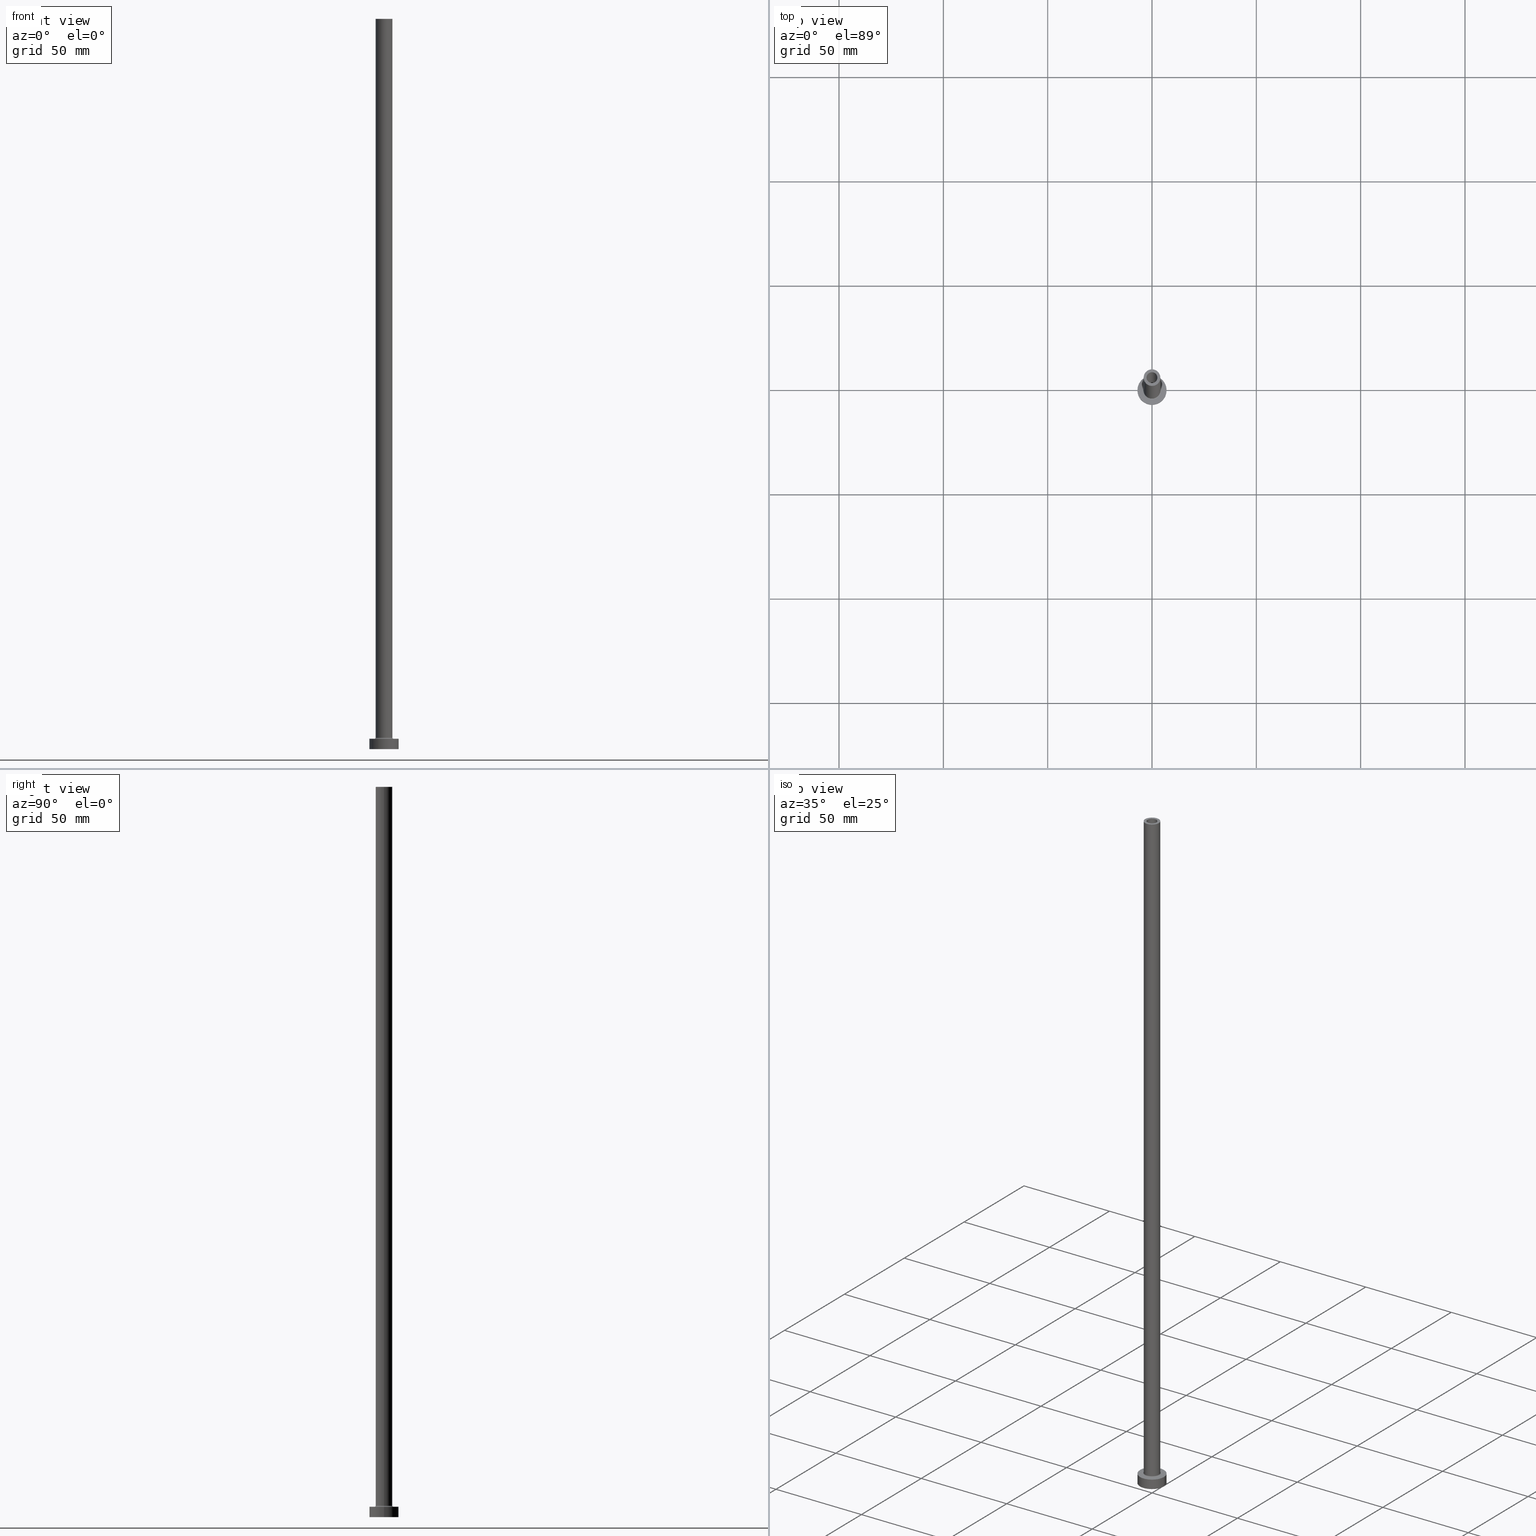
[diagram: canonical four-view strip — front | top / right | iso, engineering-drawing reading convention]
A machine part, canonical four-view strip (front | top / right | iso — engineering-drawing reading convention). The complete STEP part file that produces these views, byte-faithful:
ISO-10303-21;
HEADER;
FILE_DESCRIPTION (( 'STEP AP203' ),
    '1' );
FILE_NAME ('0387.STEP',
    '2023-02-13T16:29:26',
    ( '' ),
    ( '' ),
    'SwSTEP 2.0',
    'SolidWorks 2019',
    '' );
FILE_SCHEMA (( 'CONFIG_CONTROL_DESIGN' ));
ENDSEC;

DATA;
#1 = DIRECTION ( 'NONE',  ( 0.000000000000000000, 0.000000000000000000, -1.000000000000000000 ) ) ;
#2 = DIRECTION ( 'NONE',  ( -0.000000000000000000, -0.000000000000000000, -1.000000000000000000 ) ) ;
#3 = EDGE_CURVE ( 'NONE', #189, #116, #121, .T. ) ;
#4 = EDGE_LOOP ( 'NONE', ( #103, #41 ) ) ;
#5 = DIRECTION ( 'NONE',  ( 0.000000000000000000, 0.000000000000000000, 1.000000000000000000 ) ) ;
#6 = ORIENTED_EDGE ( 'NONE', *, *, #19, .F. ) ;
#7 = CARTESIAN_POINT ( 'NONE',  ( 0.000000000000000000, 0.000000000000000000, 312.7781745930519719 ) ) ;
#8 = ORIENTED_EDGE ( 'NONE', *, *, #188, .T. ) ;
#9 = VECTOR ( 'NONE', #162, 1000.000000000000000 ) ;
#10 = DIRECTION ( 'NONE',  ( -1.000000000000000000, 0.000000000000000000, 0.000000000000000000 ) ) ;
#11 = ORIENTED_EDGE ( 'NONE', *, *, #95, .T. ) ;
#12 = ADVANCED_FACE ( 'NONE', ( #344 ), #376, .F. ) ;
#13 =( NAMED_UNIT ( * ) SI_UNIT ( $, .STERADIAN. ) SOLID_ANGLE_UNIT ( ) );
#14 = ORIENTED_EDGE ( 'NONE', *, *, #357, .T. ) ;
#15 = COORDINATED_UNIVERSAL_TIME_OFFSET ( 1, 0, .AHEAD. ) ;
#16 = ORIENTED_EDGE ( 'NONE', *, *, #257, .T. ) ;
#17 = AXIS2_PLACEMENT_3D ( 'NONE', #80, #2, #435 ) ;
#18 = CYLINDRICAL_SURFACE ( 'NONE', #434, 2.600000000000000089 ) ;
#19 = EDGE_CURVE ( 'NONE', #252, #169, #32, .T. ) ;
#20 = PERSON_AND_ORGANIZATION_ROLE ( 'creator' ) ;
#21 = CARTESIAN_POINT ( 'NONE',  ( 0.000000000000000000, 0.000000000000000000, 0.000000000000000000 ) ) ;
#22 = DATE_TIME_ROLE ( 'creation_date' ) ;
#23 = CARTESIAN_POINT ( 'NONE',  ( -4.500000000000000888, 5.510910596163088569E-16, 5.000000000000002665 ) ) ;
#24 = AXIS2_PLACEMENT_3D ( 'NONE', #62, #149, #290 ) ;
#25 = DIRECTION ( 'NONE',  ( 0.000000000000000000, 0.000000000000000000, 1.000000000000000000 ) ) ;
#26 = CARTESIAN_POINT ( 'NONE',  ( 0.000000000000000000, 0.000000000000000000, 305.0000000000000000 ) ) ;
#27 = APPLICATION_CONTEXT ( 'configuration controlled 3d designs of mechanical parts and assemblies' ) ;
#28 = AXIS2_PLACEMENT_3D ( 'NONE', #313, #205, #238 ) ;
#29 = CARTESIAN_POINT ( 'NONE',  ( -2.600000000000000089, 0.000000000000000000, 350.0000000000000000 ) ) ;
#30 = EDGE_LOOP ( 'NONE', ( #310, #73 ) ) ;
#31 = ADVANCED_FACE ( 'NONE', ( #333 ), #198, .T. ) ;
#32 = CIRCLE ( 'NONE', #457, 7.000000000000000000 ) ;
#33 = DIRECTION ( 'NONE',  ( 0.000000000000000000, 0.000000000000000000, 1.000000000000000000 ) ) ;
#34 = CARTESIAN_POINT ( 'NONE',  ( 7.000000000000000000, 8.572527594031473190E-16, 0.000000000000000000 ) ) ;
#35 = EDGE_CURVE ( 'NONE', #37, #312, #60, .T. ) ;
#36 = DIRECTION ( 'NONE',  ( 0.000000000000000000, 0.000000000000000000, -1.000000000000000000 ) ) ;
#37 = VERTEX_POINT ( 'NONE', #369 ) ;
#38 = CIRCLE ( 'NONE', #295, 2.600000000000000089 ) ;
#39 = ORIENTED_EDGE ( 'NONE', *, *, #35, .T. ) ;
#40 = DIRECTION ( 'NONE',  ( 0.000000000000000000, 0.000000000000000000, 1.000000000000000000 ) ) ;
#41 = ORIENTED_EDGE ( 'NONE', *, *, #244, .T. ) ;
#42 = CYLINDRICAL_SURFACE ( 'NONE', #395, 7.000000000000000000 ) ;
#43 = EDGE_LOOP ( 'NONE', ( #118, #331, #16, #8 ) ) ;
#44 = CIRCLE ( 'NONE', #201, 2.600000000000000089 ) ;
#45 = CC_DESIGN_DATE_AND_TIME_ASSIGNMENT ( #93, #125, ( #427 ) ) ;
#46 = CARTESIAN_POINT ( 'NONE',  ( 2.750000000000000000, 3.367778697655220519E-16, 312.7781745930519719 ) ) ;
#47 = ORIENTED_EDGE ( 'NONE', *, *, #294, .F. ) ;
#48 = CALENDAR_DATE ( 2023, 13, 2 ) ;
#49 = VERTEX_POINT ( 'NONE', #297 ) ;
#50 = EDGE_CURVE ( 'NONE', #400, #148, #314, .T. ) ;
#51 = CARTESIAN_POINT ( 'NONE',  ( 0.000000000000000000, 0.000000000000000000, 350.0000000000000000 ) ) ;
#52 = CIRCLE ( 'NONE', #443, 2.750000000000000000 ) ;
#53 = CARTESIAN_POINT ( 'NONE',  ( 0.000000000000000000, 0.000000000000000000, 350.0000000000000000 ) ) ;
#54 = PERSON_AND_ORGANIZATION ( #326, #66 ) ;
#55 = DIRECTION ( 'NONE',  ( 0.000000000000000000, 0.000000000000000000, -1.000000000000000000 ) ) ;
#56 = EDGE_CURVE ( 'NONE', #245, #49, #414, .T. ) ;
#57 = CALENDAR_DATE ( 2023, 13, 2 ) ;
#58 = DIRECTION ( 'NONE',  ( 1.000000000000000000, 0.000000000000000000, 0.000000000000000000 ) ) ;
#59 = AXIS2_PLACEMENT_3D ( 'NONE', #207, #423, #204 ) ;
#60 = CIRCLE ( 'NONE', #177, 7.000000000000000000 ) ;
#61 = CARTESIAN_POINT ( 'NONE',  ( 0.000000000000000000, 0.000000000000000000, 305.0000000000000000 ) ) ;
#62 = CARTESIAN_POINT ( 'NONE',  ( 0.000000000000000000, 0.000000000000000000, 5.500000000000005329 ) ) ;
#63 = CC_DESIGN_PERSON_AND_ORGANIZATION_ASSIGNMENT ( #194, #20, ( #307 ) ) ;
#64 = FACE_BOUND ( 'NONE', #142, .T. ) ;
#65 = AXIS2_PLACEMENT_3D ( 'NONE', #173, #107, #211 ) ;
#66 = ORGANIZATION ( 'NEUR�EN�', 'NEUR�EN�', '' ) ;
#67 = CYLINDRICAL_SURFACE ( 'NONE', #28, 7.000000000000000000 ) ;
#68 = PLANE ( 'NONE',  #275 ) ;
#69 = VERTEX_POINT ( 'NONE', #416 ) ;
#70 = EDGE_CURVE ( 'NONE', #150, #69, #52, .T. ) ;
#71 = EDGE_LOOP ( 'NONE', ( #75, #424, #255, #439 ) ) ;
#72 = CIRCLE ( 'NONE', #65, 2.750000000000000000 ) ;
#73 = ORIENTED_EDGE ( 'NONE', *, *, #350, .T. ) ;
#74 = CYLINDRICAL_SURFACE ( 'NONE', #292, 2.750000000000000000 ) ;
#75 = ORIENTED_EDGE ( 'NONE', *, *, #188, .F. ) ;
#76 = MANIFOLD_SOLID_BREP ( 'Odebrat vysunut�m4', #206 ) ;
#77 = FACE_OUTER_BOUND ( 'NONE', #190, .T. ) ;
#78 = APPROVAL ( #375, 'NEUR�EN�' ) ;
#79 = ORIENTED_EDGE ( 'NONE', *, *, #101, .F. ) ;
#80 = CARTESIAN_POINT ( 'NONE',  ( 0.000000000000000000, 0.000000000000000000, 0.000000000000000000 ) ) ;
#81 = ORIENTED_EDGE ( 'NONE', *, *, #50, .F. ) ;
#82 = AXIS2_PLACEMENT_3D ( 'NONE', #215, #438, #117 ) ;
#83 = APPROVAL_PERSON_ORGANIZATION ( #261, #78, #266 ) ;
#84 = CARTESIAN_POINT ( 'NONE',  ( -2.600000000000000089, 0.000000000000000000, 350.0000000000000000 ) ) ;
#85 = ORIENTED_EDGE ( 'NONE', *, *, #357, .F. ) ;
#86 = ADVANCED_FACE ( 'NONE', ( #444 ), #18, .F. ) ;
#87 = APPLICATION_PROTOCOL_DEFINITION ( 'international standard', 'config_control_design', 1994, #27 ) ;
#88 = DIRECTION ( 'NONE',  ( 1.000000000000000000, 0.000000000000000000, -0.000000000000000000 ) ) ;
#89 = DIRECTION ( 'NONE',  ( -0.000000000000000000, -0.000000000000000000, -1.000000000000000000 ) ) ;
#90 = AXIS2_PLACEMENT_3D ( 'NONE', #147, #40, #352 ) ;
#91 = PERSON_AND_ORGANIZATION_ROLE ( 'design_owner' ) ;
#92 = CARTESIAN_POINT ( 'NONE',  ( -7.000000000000000000, 0.000000000000000000, 5.000000000000000000 ) ) ;
#93 = DATE_AND_TIME ( #48, #176 ) ;
#94 = DIRECTION ( 'NONE',  ( 0.000000000000000000, 0.000000000000000000, 1.000000000000000000 ) ) ;
#95 = EDGE_CURVE ( 'NONE', #289, #172, #371, .T. ) ;
#96 = CARTESIAN_POINT ( 'NONE',  ( 0.000000000000000000, 0.000000000000000000, 305.0000000000000000 ) ) ;
#97 = AXIS2_PLACEMENT_3D ( 'NONE', #304, #456, #429 ) ;
#98 = AXIS2_PLACEMENT_3D ( 'NONE', #96, #203, #88 ) ;
#99 = LINE ( 'NONE', #102, #433 ) ;
#100 = ORIENTED_EDGE ( 'NONE', *, *, #70, .T. ) ;
#101 = EDGE_CURVE ( 'NONE', #37, #169, #413, .T. ) ;
#102 = CARTESIAN_POINT ( 'NONE',  ( 7.000000000000000000, 8.572527594031473190E-16, 5.000000000000000000 ) ) ;
#103 = ORIENTED_EDGE ( 'NONE', *, *, #339, .T. ) ;
#104 = DIRECTION ( 'NONE',  ( 1.000000000000000000, 0.000000000000000000, -0.000000000000000000 ) ) ;
#105 = APPROVAL_PERSON_ORGANIZATION ( #223, #112, #299 ) ;
#106 = DIRECTION ( 'NONE',  ( 0.000000000000000000, 0.000000000000000000, 1.000000000000000000 ) ) ;
#107 = DIRECTION ( 'NONE',  ( 0.000000000000000000, 0.000000000000000000, 1.000000000000000000 ) ) ;
#108 = ORIENTED_EDGE ( 'NONE', *, *, #3, .T. ) ;
#109 = EDGE_LOOP ( 'NONE', ( #152, #248, #187, #280 ) ) ;
#110 = AXIS2_PLACEMENT_3D ( 'NONE', #399, #362, #217 ) ;
#111 = EDGE_LOOP ( 'NONE', ( #108, #291 ) ) ;
#112 = APPROVAL ( #161, 'NEUR�EN�' ) ;
#113 = FACE_BOUND ( 'NONE', #4, .T. ) ;
#114 = ORIENTED_EDGE ( 'NONE', *, *, #452, .F. ) ;
#115 = CARTESIAN_POINT ( 'NONE',  ( 0.000000000000000000, 0.000000000000000000, 5.000000000000000000 ) ) ;
#116 = VERTEX_POINT ( 'NONE', #256 ) ;
#117 = DIRECTION ( 'NONE',  ( 1.000000000000000000, 0.000000000000000000, -0.000000000000000000 ) ) ;
#118 = ORIENTED_EDGE ( 'NONE', *, *, #212, .F. ) ;
#119 = EDGE_CURVE ( 'NONE', #286, #150, #200, .T. ) ;
#120 = AXIS2_PLACEMENT_3D ( 'NONE', #258, #417, #330 ) ;
#121 = CIRCLE ( 'NONE', #129, 4.000000000000000000 ) ;
#122 = DIRECTION ( 'NONE',  ( 0.000000000000000000, 0.000000000000000000, -1.000000000000000000 ) ) ;
#123 = COORDINATED_UNIVERSAL_TIME_OFFSET ( 1, 0, .AHEAD. ) ;
#124 = FACE_BOUND ( 'NONE', #30, .T. ) ;
#125 = DATE_TIME_ROLE ( 'classification_date' ) ;
#126 = DIRECTION ( 'NONE',  ( -1.000000000000000000, 0.000000000000000000, 0.000000000000000000 ) ) ;
#127 = APPROVAL_PERSON_ORGANIZATION ( #54, #446, #197 ) ;
#128 = CC_DESIGN_PERSON_AND_ORGANIZATION_ASSIGNMENT ( #158, #302, ( #300 ) ) ;
#129 = AXIS2_PLACEMENT_3D ( 'NONE', #181, #25, #231 ) ;
#130 = COORDINATED_UNIVERSAL_TIME_OFFSET ( 1, 0, .AHEAD. ) ;
#131 = DIRECTION ( 'NONE',  ( 1.000000000000000000, 0.000000000000000000, 0.000000000000000000 ) ) ;
#132 = CALENDAR_DATE ( 2023, 13, 2 ) ;
#133 = DIRECTION ( 'NONE',  ( 1.000000000000000000, 0.000000000000000000, 0.000000000000000000 ) ) ;
#134 = DIRECTION ( 'NONE',  ( 0.000000000000000000, 0.000000000000000000, 1.000000000000000000 ) ) ;
#135 = CC_DESIGN_PERSON_AND_ORGANIZATION_ASSIGNMENT ( #228, #91, ( #320 ) ) ;
#136 = VECTOR ( 'NONE', #1, 1000.000000000000000 ) ;
#137 = CARTESIAN_POINT ( 'NONE',  ( -2.600000000000000089, 0.000000000000000000, 305.0000000000000000 ) ) ;
#138 = DIRECTION ( 'NONE',  ( 0.000000000000000000, 0.000000000000000000, 1.000000000000000000 ) ) ;
#139 = CARTESIAN_POINT ( 'NONE',  ( 4.000000000000000000, 4.898587196589412829E-16, 350.0000000000000000 ) ) ;
#140 = VECTOR ( 'NONE', #311, 1000.000000000000000 ) ;
#141 = DIRECTION ( 'NONE',  ( -0.000000000000000000, -0.000000000000000000, -1.000000000000000000 ) ) ;
#142 = EDGE_LOOP ( 'NONE', ( #405, #430 ) ) ;
#143 = DIRECTION ( 'NONE',  ( 1.000000000000000000, 0.000000000000000000, 0.000000000000000000 ) ) ;
#144 = APPLICATION_PROTOCOL_DEFINITION ( 'international standard', 'config_control_design', 1994, #260 ) ;
#145 = ORIENTED_EDGE ( 'NONE', *, *, #237, .F. ) ;
#146 = EDGE_CURVE ( 'NONE', #363, #428, #38, .T. ) ;
#147 = CARTESIAN_POINT ( 'NONE',  ( 0.000000000000000000, 0.000000000000000000, 350.0000000000000000 ) ) ;
#148 = VERTEX_POINT ( 'NONE', #23 ) ;
#149 = DIRECTION ( 'NONE',  ( 0.000000000000000000, 0.000000000000000000, 1.000000000000000000 ) ) ;
#150 = VERTEX_POINT ( 'NONE', #418 ) ;
#151 = PLANE ( 'NONE',  #90 ) ;
#152 = ORIENTED_EDGE ( 'NONE', *, *, #202, .F. ) ;
#153 = DIRECTION ( 'NONE',  ( 0.000000000000000000, 0.000000000000000000, 1.000000000000000000 ) ) ;
#154 = AXIS2_PLACEMENT_3D ( 'NONE', #319, #281, #359 ) ;
#155 = AXIS2_PLACEMENT_3D ( 'NONE', #61, #378, #131 ) ;
#156 = PERSON_AND_ORGANIZATION ( #326, #66 ) ;
#157 = CARTESIAN_POINT ( 'NONE',  ( 0.000000000000000000, 0.000000000000000000, 350.0000000000000000 ) ) ;
#158 = PERSON_AND_ORGANIZATION ( #326, #66 ) ;
#159 = DIRECTION ( 'NONE',  ( 0.000000000000000000, 0.000000000000000000, -1.000000000000000000 ) ) ;
#160 = CC_DESIGN_PERSON_AND_ORGANIZATION_ASSIGNMENT ( #296, #365, ( #427 ) ) ;
#161 = APPROVAL_STATUS ( 'not_yet_approved' ) ;
#162 = DIRECTION ( 'NONE',  ( -0.000000000000000000, -0.000000000000000000, -1.000000000000000000 ) ) ;
#163 = CC_DESIGN_APPROVAL ( #112, ( #300 ) ) ;
#164 = COORDINATED_UNIVERSAL_TIME_OFFSET ( 1, 0, .AHEAD. ) ;
#165 = CARTESIAN_POINT ( 'NONE',  ( 0.000000000000000000, 0.000000000000000000, 0.000000000000000000 ) ) ;
#166 = ADVANCED_FACE ( 'NONE', ( #124, #342 ), #303, .F. ) ;
#167 = LINE ( 'NONE', #273, #348 ) ;
#168 = CARTESIAN_POINT ( 'NONE',  ( 2.600000000000000089, 3.184081677783117698E-16, 350.0000000000000000 ) ) ;
#169 = VERTEX_POINT ( 'NONE', #224 ) ;
#170 = AXIS2_PLACEMENT_3D ( 'NONE', #383, #106, #422 ) ;
#171 = CARTESIAN_POINT ( 'NONE',  ( 0.000000000000000000, 0.000000000000000000, 5.000000000000000000 ) ) ;
#172 = VERTEX_POINT ( 'NONE', #259 ) ;
#173 = CARTESIAN_POINT ( 'NONE',  ( 0.000000000000000000, 0.000000000000000000, 305.0000000000000000 ) ) ;
#174 = ADVANCED_FACE ( 'NONE', ( #409 ), #367, .T. ) ;
#175 = CARTESIAN_POINT ( 'NONE',  ( 0.000000000000000000, 0.000000000000000000, 5.500000000000005329 ) ) ;
#176 = LOCAL_TIME ( 17, 29, 26.00000000000000000, #415 ) ;
#177 = AXIS2_PLACEMENT_3D ( 'NONE', #265, #94, #451 ) ;
#178 = ORIENTED_EDGE ( 'NONE', *, *, #119, .T. ) ;
#179 = CARTESIAN_POINT ( 'NONE',  ( 0.000000000000000000, 0.000000000000000000, 5.000000000000000000 ) ) ;
#180 = ADVANCED_FACE ( 'NONE', ( #226 ), #213, .F. ) ;
#181 = CARTESIAN_POINT ( 'NONE',  ( 0.000000000000000000, 0.000000000000000000, 350.0000000000000000 ) ) ;
#182 = FACE_OUTER_BOUND ( 'NONE', #318, .T. ) ;
#183 = EDGE_LOOP ( 'NONE', ( #384, #6 ) ) ;
#184 = PRODUCT_DEFINITION_SHAPE ( 'NONE', 'NONE',  #307 ) ;
#185 = FACE_BOUND ( 'NONE', #387, .T. ) ;
#186 = CIRCLE ( 'NONE', #110, 2.750000000000000000 ) ;
#187 = ORIENTED_EDGE ( 'NONE', *, *, #329, .T. ) ;
#188 = EDGE_CURVE ( 'NONE', #400, #289, #341, .T. ) ;
#189 = VERTEX_POINT ( 'NONE', #272 ) ;
#190 = EDGE_LOOP ( 'NONE', ( #39, #279 ) ) ;
#191 = DATE_AND_TIME ( #337, #449 ) ;
#192 = DIRECTION ( 'NONE',  ( -1.000000000000000000, 0.000000000000000000, 0.000000000000000000 ) ) ;
#193 = LOCAL_TIME ( 17, 29, 26.00000000000000000, #15 ) ;
#194 = PERSON_AND_ORGANIZATION ( #326, #66 ) ;
#195 = DIRECTION ( 'NONE',  ( -1.000000000000000000, 0.000000000000000000, 0.000000000000000000 ) ) ;
#196 = CC_DESIGN_DATE_AND_TIME_ASSIGNMENT ( #230, #22, ( #307 ) ) ;
#197 = APPROVAL_ROLE ( '' ) ;
#198 = CYLINDRICAL_SURFACE ( 'NONE', #388, 4.000000000000000000 ) ;
#199 = DATE_AND_TIME ( #57, #193 ) ;
#200 = LINE ( 'NONE', #373, #234 ) ;
#201 = AXIS2_PLACEMENT_3D ( 'NONE', #26, #421, #381 ) ;
#202 = EDGE_CURVE ( 'NONE', #363, #49, #346, .T. ) ;
#203 = DIRECTION ( 'NONE',  ( 0.000000000000000000, 0.000000000000000000, 1.000000000000000000 ) ) ;
#204 = DIRECTION ( 'NONE',  ( 1.000000000000000000, 0.000000000000000000, 0.000000000000000000 ) ) ;
#205 = DIRECTION ( 'NONE',  ( -0.000000000000000000, -0.000000000000000000, -1.000000000000000000 ) ) ;
#206 = CLOSED_SHELL ( 'NONE', ( #86, #380, #345, #174, #225, #425, #410, #322, #31, #364, #180, #390, #166, #12 ) ) ;
#207 = CARTESIAN_POINT ( 'NONE',  ( 0.000000000000000000, 0.000000000000000000, 5.500000000000005329 ) ) ;
#208 = CARTESIAN_POINT ( 'NONE',  ( 0.000000000000000000, 0.000000000000000000, 0.000000000000000000 ) ) ;
#209 = ORIENTED_EDGE ( 'NONE', *, *, #437, .T. ) ;
#210 = DESIGN_CONTEXT ( 'detailed design', #27, 'design' ) ;
#211 = DIRECTION ( 'NONE',  ( 1.000000000000000000, 0.000000000000000000, 0.000000000000000000 ) ) ;
#212 = EDGE_CURVE ( 'NONE', #116, #289, #270, .T. ) ;
#213 = TOROIDAL_SURFACE ( 'NONE', #227, 4.500000000000000888, 0.5000000000000000000 ) ;
#214 = ORIENTED_EDGE ( 'NONE', *, *, #419, .T. ) ;
#215 = CARTESIAN_POINT ( 'NONE',  ( 0.000000000000000000, 0.000000000000000000, 5.000000000000000000 ) ) ;
#216 = EDGE_LOOP ( 'NONE', ( #114, #355, #243, #79 ) ) ;
#217 = DIRECTION ( 'NONE',  ( 1.000000000000000000, 0.000000000000000000, 0.000000000000000000 ) ) ;
#218 = ORIENTED_EDGE ( 'NONE', *, *, #271, .F. ) ;
#219 = DIRECTION ( 'NONE',  ( 1.000000000000000000, 0.000000000000000000, 0.000000000000000000 ) ) ;
#220 = ORIENTED_EDGE ( 'NONE', *, *, #202, .T. ) ;
#221 = PERSON_AND_ORGANIZATION_ROLE ( 'design_supplier' ) ;
#222 = ORIENTED_EDGE ( 'NONE', *, *, #431, .F. ) ;
#223 = PERSON_AND_ORGANIZATION ( #326, #66 ) ;
#224 = CARTESIAN_POINT ( 'NONE',  ( -7.000000000000000000, 0.000000000000000000, 0.000000000000000000 ) ) ;
#225 = ADVANCED_FACE ( 'NONE', ( #460 ), #67, .T. ) ;
#226 = FACE_OUTER_BOUND ( 'NONE', #436, .T. ) ;
#227 = AXIS2_PLACEMENT_3D ( 'NONE', #175, #235, #347 ) ;
#228 = PERSON_AND_ORGANIZATION ( #326, #66 ) ;
#229 = DIRECTION ( 'NONE',  ( 1.000000000000000000, 0.000000000000000000, 0.000000000000000000 ) ) ;
#230 = DATE_AND_TIME ( #132, #240 ) ;
#231 = DIRECTION ( 'NONE',  ( 1.000000000000000000, 0.000000000000000000, 0.000000000000000000 ) ) ;
#232 = CARTESIAN_POINT ( 'NONE',  ( 0.000000000000000000, 0.000000000000000000, 350.0000000000000000 ) ) ;
#233 = AXIS2_PLACEMENT_3D ( 'NONE', #305, #33, #277 ) ;
#234 = VECTOR ( 'NONE', #159, 1000.000000000000000 ) ;
#235 = DIRECTION ( 'NONE',  ( 0.000000000000000000, 0.000000000000000000, 1.000000000000000000 ) ) ;
#236 = CARTESIAN_POINT ( 'NONE',  ( 2.750000000000000000, 3.367778697655220519E-16, 305.0000000000000000 ) ) ;
#237 = EDGE_CURVE ( 'NONE', #116, #189, #442, .T. ) ;
#238 = DIRECTION ( 'NONE',  ( -1.000000000000000000, 0.000000000000000000, 0.000000000000000000 ) ) ;
#239 = EDGE_LOOP ( 'NONE', ( #250, #218 ) ) ;
#240 = LOCAL_TIME ( 17, 29, 26.00000000000000000, #130 ) ;
#241 = CARTESIAN_POINT ( 'NONE',  ( 7.000000000000000000, 8.572527594031473190E-16, 5.000000000000000000 ) ) ;
#242 = FACE_OUTER_BOUND ( 'NONE', #71, .T. ) ;
#243 = ORIENTED_EDGE ( 'NONE', *, *, #19, .T. ) ;
#244 = EDGE_CURVE ( 'NONE', #148, #172, #324, .T. ) ;
#245 = VERTEX_POINT ( 'NONE', #137 ) ;
#246 = VECTOR ( 'NONE', #36, 1000.000000000000000 ) ;
#247 = DIRECTION ( 'NONE',  ( -1.000000000000000000, 0.000000000000000000, 0.000000000000000000 ) ) ;
#248 = ORIENTED_EDGE ( 'NONE', *, *, #146, .T. ) ;
#249 = PLANE ( 'NONE',  #82 ) ;
#250 = ORIENTED_EDGE ( 'NONE', *, *, #419, .F. ) ;
#251 = CARTESIAN_POINT ( 'NONE',  ( 0.000000000000000000, 0.000000000000000000, 350.0000000000000000 ) ) ;
#252 = VERTEX_POINT ( 'NONE', #34 ) ;
#253 = CARTESIAN_POINT ( 'NONE',  ( 2.600000000000000089, 3.184081677783117698E-16, 350.0000000000000000 ) ) ;
#254 =( GEOMETRIC_REPRESENTATION_CONTEXT ( 3 ) GLOBAL_UNCERTAINTY_ASSIGNED_CONTEXT ( ( #458 ) ) GLOBAL_UNIT_ASSIGNED_CONTEXT ( ( #393, #315, #13 ) ) REPRESENTATION_CONTEXT ( 'NONE', 'WORKASPACE' ) );
#255 = ORIENTED_EDGE ( 'NONE', *, *, #339, .F. ) ;
#256 = CARTESIAN_POINT ( 'NONE',  ( 4.000000000000000000, 4.898587196589412829E-16, 350.0000000000000000 ) ) ;
#257 = EDGE_CURVE ( 'NONE', #189, #400, #167, .T. ) ;
#258 = CARTESIAN_POINT ( 'NONE',  ( 0.000000000000000000, 0.000000000000000000, 0.000000000000000000 ) ) ;
#259 = CARTESIAN_POINT ( 'NONE',  ( 4.500000000000000888, 0.000000000000000000, 5.000000000000002665 ) ) ;
#260 = APPLICATION_CONTEXT ( 'configuration controlled 3d designs of mechanical parts and assemblies' ) ;
#261 = PERSON_AND_ORGANIZATION ( #326, #66 ) ;
#262 = DIRECTION ( 'NONE',  ( 1.224646799147353207E-16, 1.000000000000000000, -0.000000000000000000 ) ) ;
#263 = CIRCLE ( 'NONE', #17, 2.750000000000000000 ) ;
#264 = SECURITY_CLASSIFICATION_LEVEL ( 'unclassified' ) ;
#265 = CARTESIAN_POINT ( 'NONE',  ( 0.000000000000000000, 0.000000000000000000, 5.000000000000000000 ) ) ;
#266 = APPROVAL_ROLE ( '' ) ;
#267 = DIRECTION ( 'NONE',  ( -1.000000000000000000, 1.224646799147351482E-16, 0.000000000000000000 ) ) ;
#268 = DIRECTION ( 'NONE',  ( 1.000000000000000000, 0.000000000000000000, 0.000000000000000000 ) ) ;
#269 = AXIS2_PLACEMENT_3D ( 'NONE', #251, #5, #143 ) ;
#270 = LINE ( 'NONE', #139, #412 ) ;
#271 = EDGE_CURVE ( 'NONE', #321, #286, #72, .T. ) ;
#272 = CARTESIAN_POINT ( 'NONE',  ( -4.000000000000000000, 0.000000000000000000, 350.0000000000000000 ) ) ;
#273 = CARTESIAN_POINT ( 'NONE',  ( -4.000000000000000000, 0.000000000000000000, 350.0000000000000000 ) ) ;
#274 = ORIENTED_EDGE ( 'NONE', *, *, #437, .F. ) ;
#275 = AXIS2_PLACEMENT_3D ( 'NONE', #208, #138, #104 ) ;
#276 = CC_DESIGN_APPROVAL ( #78, ( #427 ) ) ;
#277 = DIRECTION ( 'NONE',  ( 1.000000000000000000, 0.000000000000000000, 0.000000000000000000 ) ) ;
#278 = EDGE_CURVE ( 'NONE', #169, #252, #455, .T. ) ;
#279 = ORIENTED_EDGE ( 'NONE', *, *, #452, .T. ) ;
#280 = ORIENTED_EDGE ( 'NONE', *, *, #350, .F. ) ;
#281 = DIRECTION ( 'NONE',  ( 0.000000000000000000, 0.000000000000000000, -1.000000000000000000 ) ) ;
#282 = EDGE_LOOP ( 'NONE', ( #316, #220, #392, #353 ) ) ;
#283 = AXIS2_PLACEMENT_3D ( 'NONE', #171, #385, #351 ) ;
#284 = CYLINDRICAL_SURFACE ( 'NONE', #154, 2.750000000000000000 ) ;
#285 = AXIS2_PLACEMENT_3D ( 'NONE', #445, #336, #122 ) ;
#286 = VERTEX_POINT ( 'NONE', #426 ) ;
#287 = PRODUCT_RELATED_PRODUCT_CATEGORY ( 'detail', '', ( #320 ) ) ;
#288 = DIRECTION ( 'NONE',  ( 0.000000000000000000, 0.000000000000000000, -1.000000000000000000 ) ) ;
#289 = VERTEX_POINT ( 'NONE', #309 ) ;
#290 = DIRECTION ( 'NONE',  ( 1.000000000000000000, 0.000000000000000000, 0.000000000000000000 ) ) ;
#291 = ORIENTED_EDGE ( 'NONE', *, *, #237, .T. ) ;
#292 = AXIS2_PLACEMENT_3D ( 'NONE', #7, #288, #247 ) ;
#293 = CARTESIAN_POINT ( 'NONE',  ( 0.000000000000000000, 0.000000000000000000, 350.0000000000000000 ) ) ;
#294 = EDGE_CURVE ( 'NONE', #312, #252, #99, .T. ) ;
#295 = AXIS2_PLACEMENT_3D ( 'NONE', #53, #407, #229 ) ;
#296 = PERSON_AND_ORGANIZATION ( #326, #66 ) ;
#297 = CARTESIAN_POINT ( 'NONE',  ( 2.600000000000000089, 3.184081677783117698E-16, 305.0000000000000000 ) ) ;
#298 = DIRECTION ( 'NONE',  ( -0.000000000000000000, -0.000000000000000000, -1.000000000000000000 ) ) ;
#299 = APPROVAL_ROLE ( '' ) ;
#300 = PRODUCT_DEFINITION_FORMATION_WITH_SPECIFIED_SOURCE ( 'LIBOVOLN�', '', #320, .NOT_KNOWN. ) ;
#301 = DIRECTION ( 'NONE',  ( -0.000000000000000000, -0.000000000000000000, -1.000000000000000000 ) ) ;
#302 = PERSON_AND_ORGANIZATION_ROLE ( 'creator' ) ;
#303 = PLANE ( 'NONE',  #98 ) ;
#304 = CARTESIAN_POINT ( 'NONE',  ( 0.000000000000000000, 0.000000000000000000, 5.000000000000000000 ) ) ;
#305 = CARTESIAN_POINT ( 'NONE',  ( 0.000000000000000000, 0.000000000000000000, 350.0000000000000000 ) ) ;
#306 = ORIENTED_EDGE ( 'NONE', *, *, #212, .T. ) ;
#307 = PRODUCT_DEFINITION ( 'NEZN�M�', '', #300, #210 ) ;
#308 = CIRCLE ( 'NONE', #283, 4.500000000000000888 ) ;
#309 = CARTESIAN_POINT ( 'NONE',  ( 4.000000000000000000, 4.898587196589412829E-16, 5.500000000000005329 ) ) ;
#310 = ORIENTED_EDGE ( 'NONE', *, *, #56, .T. ) ;
#311 = DIRECTION ( 'NONE',  ( 0.000000000000000000, 0.000000000000000000, -1.000000000000000000 ) ) ;
#312 = VERTEX_POINT ( 'NONE', #241 ) ;
#313 = CARTESIAN_POINT ( 'NONE',  ( 0.000000000000000000, 0.000000000000000000, 5.000000000000000000 ) ) ;
#314 = CIRCLE ( 'NONE', #379, 0.5000000000000004441 ) ;
#315 =( NAMED_UNIT ( * ) PLANE_ANGLE_UNIT ( ) SI_UNIT ( $, .RADIAN. ) );
#316 = ORIENTED_EDGE ( 'NONE', *, *, #431, .T. ) ;
#317 = DIRECTION ( 'NONE',  ( 0.000000000000000000, 0.000000000000000000, 1.000000000000000000 ) ) ;
#318 = EDGE_LOOP ( 'NONE', ( #214, #209, #461, #432 ) ) ;
#319 = CARTESIAN_POINT ( 'NONE',  ( 0.000000000000000000, 0.000000000000000000, 312.7781745930519719 ) ) ;
#320 = PRODUCT ( '0387', '0387', '', ( #408 ) ) ;
#321 = VERTEX_POINT ( 'NONE', #236 ) ;
#322 = ADVANCED_FACE ( 'NONE', ( #64, #389 ), #68, .F. ) ;
#323 = TOROIDAL_SURFACE ( 'NONE', #354, 4.500000000000000888, 0.5000000000000000000 ) ;
#324 = CIRCLE ( 'NONE', #97, 4.500000000000000888 ) ;
#325 = FACE_OUTER_BOUND ( 'NONE', #382, .T. ) ;
#326 = PERSON ( 'NEUR�EN�', 'NEUR�EN�', 'NEUR�EN�', ('NEUR�EN�'), ('NEUR�EN�'), ('NEUR�EN�') ) ;
#327 = ORIENTED_EDGE ( 'NONE', *, *, #257, .F. ) ;
#328 = ORIENTED_EDGE ( 'NONE', *, *, #146, .F. ) ;
#329 = EDGE_CURVE ( 'NONE', #428, #245, #391, .T. ) ;
#330 = DIRECTION ( 'NONE',  ( 1.000000000000000000, 0.000000000000000000, 0.000000000000000000 ) ) ;
#331 = ORIENTED_EDGE ( 'NONE', *, *, #3, .F. ) ;
#332 = AXIS2_PLACEMENT_3D ( 'NONE', #179, #317, #219 ) ;
#333 = FACE_OUTER_BOUND ( 'NONE', #43, .T. ) ;
#334 = AXIS2_PLACEMENT_3D ( 'NONE', #293, #55, #126 ) ;
#335 = APPROVAL_DATE_TIME ( #450, #112 ) ;
#336 = DIRECTION ( 'NONE',  ( 0.000000000000000000, -1.000000000000000000, 0.000000000000000000 ) ) ;
#337 = CALENDAR_DATE ( 2023, 13, 2 ) ;
#338 = CARTESIAN_POINT ( 'NONE',  ( -4.500000000000000888, 5.510910596163089556E-16, 5.500000000000005329 ) ) ;
#339 = EDGE_CURVE ( 'NONE', #172, #148, #308, .T. ) ;
#340 = APPROVAL_DATE_TIME ( #199, #78 ) ;
#341 = CIRCLE ( 'NONE', #59, 4.000000000000000000 ) ;
#342 = FACE_OUTER_BOUND ( 'NONE', #239, .T. ) ;
#343 = CC_DESIGN_SECURITY_CLASSIFICATION ( #427, ( #300 ) ) ;
#344 = FACE_OUTER_BOUND ( 'NONE', #109, .T. ) ;
#345 = ADVANCED_FACE ( 'NONE', ( #242 ), #323, .F. ) ;
#346 = LINE ( 'NONE', #168, #140 ) ;
#347 = DIRECTION ( 'NONE',  ( 1.000000000000000000, 0.000000000000000000, 0.000000000000000000 ) ) ;
#348 = VECTOR ( 'NONE', #459, 1000.000000000000000 ) ;
#349 = DIRECTION ( 'NONE',  ( -0.000000000000000000, -0.000000000000000000, -1.000000000000000000 ) ) ;
#350 = EDGE_CURVE ( 'NONE', #49, #245, #44, .T. ) ;
#351 = DIRECTION ( 'NONE',  ( 1.000000000000000000, 0.000000000000000000, 0.000000000000000000 ) ) ;
#352 = DIRECTION ( 'NONE',  ( 1.000000000000000000, 0.000000000000000000, -0.000000000000000000 ) ) ;
#353 = ORIENTED_EDGE ( 'NONE', *, *, #329, .F. ) ;
#354 = AXIS2_PLACEMENT_3D ( 'NONE', #454, #134, #268 ) ;
#355 = ORIENTED_EDGE ( 'NONE', *, *, #294, .T. ) ;
#356 = FACE_OUTER_BOUND ( 'NONE', #111, .T. ) ;
#357 = EDGE_CURVE ( 'NONE', #289, #400, #377, .T. ) ;
#358 = ORIENTED_EDGE ( 'NONE', *, *, #101, .T. ) ;
#359 = DIRECTION ( 'NONE',  ( -1.000000000000000000, 0.000000000000000000, 0.000000000000000000 ) ) ;
#360 = ORIENTED_EDGE ( 'NONE', *, *, #271, .T. ) ;
#361 = LOCAL_TIME ( 17, 29, 26.00000000000000000, #164 ) ;
#362 = DIRECTION ( 'NONE',  ( 0.000000000000000000, 0.000000000000000000, 1.000000000000000000 ) ) ;
#363 = VERTEX_POINT ( 'NONE', #253 ) ;
#364 = ADVANCED_FACE ( 'NONE', ( #185, #356 ), #151, .T. ) ;
#365 = PERSON_AND_ORGANIZATION_ROLE ( 'classification_officer' ) ;
#366 = EDGE_LOOP ( 'NONE', ( #47, #441, #358, #402 ) ) ;
#367 = CYLINDRICAL_SURFACE ( 'NONE', #403, 4.000000000000000000 ) ;
#368 = CIRCLE ( 'NONE', #332, 7.000000000000000000 ) ;
#369 = CARTESIAN_POINT ( 'NONE',  ( -7.000000000000000000, 0.000000000000000000, 5.000000000000000000 ) ) ;
#370 = ADVANCED_BREP_SHAPE_REPRESENTATION ( '0387', ( #76, #120 ), #254 ) ;
#371 = CIRCLE ( 'NONE', #285, 0.5000000000000004441 ) ;
#372 = APPROVAL_STATUS ( 'not_yet_approved' ) ;
#373 = CARTESIAN_POINT ( 'NONE',  ( -2.750000000000000000, 0.000000000000000000, 312.7781745930519719 ) ) ;
#374 = CC_DESIGN_PERSON_AND_ORGANIZATION_ASSIGNMENT ( #156, #221, ( #300 ) ) ;
#375 = APPROVAL_STATUS ( 'not_yet_approved' ) ;
#376 = CYLINDRICAL_SURFACE ( 'NONE', #334, 2.600000000000000089 ) ;
#377 = CIRCLE ( 'NONE', #24, 4.000000000000000000 ) ;
#378 = DIRECTION ( 'NONE',  ( 0.000000000000000000, 0.000000000000000000, 1.000000000000000000 ) ) ;
#379 = AXIS2_PLACEMENT_3D ( 'NONE', #338, #262, #267 ) ;
#380 = ADVANCED_FACE ( 'NONE', ( #182 ), #284, .F. ) ;
#381 = DIRECTION ( 'NONE',  ( 1.000000000000000000, 0.000000000000000000, 0.000000000000000000 ) ) ;
#382 = EDGE_LOOP ( 'NONE', ( #274, #360, #178, #100 ) ) ;
#383 = CARTESIAN_POINT ( 'NONE',  ( 0.000000000000000000, 0.000000000000000000, 0.000000000000000000 ) ) ;
#384 = ORIENTED_EDGE ( 'NONE', *, *, #278, .F. ) ;
#385 = DIRECTION ( 'NONE',  ( -0.000000000000000000, -0.000000000000000000, -1.000000000000000000 ) ) ;
#386 = CC_DESIGN_APPROVAL ( #446, ( #307 ) ) ;
#387 = EDGE_LOOP ( 'NONE', ( #222, #328 ) ) ;
#388 = AXIS2_PLACEMENT_3D ( 'NONE', #157, #301, #448 ) ;
#389 = FACE_OUTER_BOUND ( 'NONE', #183, .T. ) ;
#390 = ADVANCED_FACE ( 'NONE', ( #325 ), #74, .F. ) ;
#391 = LINE ( 'NONE', #29, #136 ) ;
#392 = ORIENTED_EDGE ( 'NONE', *, *, #56, .F. ) ;
#393 =( LENGTH_UNIT ( ) NAMED_UNIT ( * ) SI_UNIT ( .MILLI., .METRE. ) );
#394 = ORIENTED_EDGE ( 'NONE', *, *, #244, .F. ) ;
#395 = AXIS2_PLACEMENT_3D ( 'NONE', #115, #397, #10 ) ;
#396 = EDGE_CURVE ( 'NONE', #69, #150, #263, .T. ) ;
#397 = DIRECTION ( 'NONE',  ( -0.000000000000000000, -0.000000000000000000, -1.000000000000000000 ) ) ;
#398 = EDGE_LOOP ( 'NONE', ( #145, #306, #14, #327 ) ) ;
#399 = CARTESIAN_POINT ( 'NONE',  ( 0.000000000000000000, 0.000000000000000000, 305.0000000000000000 ) ) ;
#400 = VERTEX_POINT ( 'NONE', #440 ) ;
#401 = LINE ( 'NONE', #46, #246 ) ;
#402 = ORIENTED_EDGE ( 'NONE', *, *, #278, .T. ) ;
#403 = AXIS2_PLACEMENT_3D ( 'NONE', #51, #89, #192 ) ;
#404 = FACE_OUTER_BOUND ( 'NONE', #366, .T. ) ;
#405 = ORIENTED_EDGE ( 'NONE', *, *, #70, .F. ) ;
#406 = CALENDAR_DATE ( 2023, 13, 2 ) ;
#407 = DIRECTION ( 'NONE',  ( 0.000000000000000000, 0.000000000000000000, 1.000000000000000000 ) ) ;
#408 = MECHANICAL_CONTEXT ( 'NONE', #260, 'mechanical' ) ;
#409 = FACE_OUTER_BOUND ( 'NONE', #398, .T. ) ;
#410 = ADVANCED_FACE ( 'NONE', ( #113, #77 ), #249, .T. ) ;
#411 = APPROVAL_DATE_TIME ( #191, #446 ) ;
#412 = VECTOR ( 'NONE', #349, 1000.000000000000000 ) ;
#413 = LINE ( 'NONE', #92, #9 ) ;
#414 = CIRCLE ( 'NONE', #155, 2.600000000000000089 ) ;
#415 = COORDINATED_UNIVERSAL_TIME_OFFSET ( 1, 0, .AHEAD. ) ;
#416 = CARTESIAN_POINT ( 'NONE',  ( 2.750000000000000000, 3.367778697655220519E-16, 0.000000000000000000 ) ) ;
#417 = DIRECTION ( 'NONE',  ( 0.000000000000000000, 0.000000000000000000, 1.000000000000000000 ) ) ;
#418 = CARTESIAN_POINT ( 'NONE',  ( -2.750000000000000000, 0.000000000000000000, 0.000000000000000000 ) ) ;
#419 = EDGE_CURVE ( 'NONE', #286, #321, #186, .T. ) ;
#420 = CIRCLE ( 'NONE', #269, 2.600000000000000089 ) ;
#421 = DIRECTION ( 'NONE',  ( 0.000000000000000000, 0.000000000000000000, 1.000000000000000000 ) ) ;
#422 = DIRECTION ( 'NONE',  ( 1.000000000000000000, 0.000000000000000000, 0.000000000000000000 ) ) ;
#423 = DIRECTION ( 'NONE',  ( 0.000000000000000000, 0.000000000000000000, 1.000000000000000000 ) ) ;
#424 = ORIENTED_EDGE ( 'NONE', *, *, #50, .T. ) ;
#425 = ADVANCED_FACE ( 'NONE', ( #404 ), #42, .T. ) ;
#426 = CARTESIAN_POINT ( 'NONE',  ( -2.750000000000000000, 0.000000000000000000, 305.0000000000000000 ) ) ;
#427 = SECURITY_CLASSIFICATION ( '', '', #264 ) ;
#428 = VERTEX_POINT ( 'NONE', #84 ) ;
#429 = DIRECTION ( 'NONE',  ( 1.000000000000000000, 0.000000000000000000, 0.000000000000000000 ) ) ;
#430 = ORIENTED_EDGE ( 'NONE', *, *, #396, .F. ) ;
#431 = EDGE_CURVE ( 'NONE', #428, #363, #420, .T. ) ;
#432 = ORIENTED_EDGE ( 'NONE', *, *, #119, .F. ) ;
#433 = VECTOR ( 'NONE', #141, 1000.000000000000000 ) ;
#434 = AXIS2_PLACEMENT_3D ( 'NONE', #232, #453, #195 ) ;
#435 = DIRECTION ( 'NONE',  ( 1.000000000000000000, 0.000000000000000000, 0.000000000000000000 ) ) ;
#436 = EDGE_LOOP ( 'NONE', ( #81, #85, #11, #394 ) ) ;
#437 = EDGE_CURVE ( 'NONE', #321, #69, #401, .T. ) ;
#438 = DIRECTION ( 'NONE',  ( 0.000000000000000000, 0.000000000000000000, 1.000000000000000000 ) ) ;
#439 = ORIENTED_EDGE ( 'NONE', *, *, #95, .F. ) ;
#440 = CARTESIAN_POINT ( 'NONE',  ( -4.000000000000000000, 0.000000000000000000, 5.500000000000005329 ) ) ;
#441 = ORIENTED_EDGE ( 'NONE', *, *, #35, .F. ) ;
#442 = CIRCLE ( 'NONE', #233, 4.000000000000000000 ) ;
#443 = AXIS2_PLACEMENT_3D ( 'NONE', #165, #298, #58 ) ;
#444 = FACE_OUTER_BOUND ( 'NONE', #282, .T. ) ;
#445 = CARTESIAN_POINT ( 'NONE',  ( 4.500000000000000888, 0.000000000000000000, 5.500000000000005329 ) ) ;
#446 = APPROVAL ( #372, 'NEUR�EN�' ) ;
#447 = SHAPE_DEFINITION_REPRESENTATION ( #184, #370 ) ;
#448 = DIRECTION ( 'NONE',  ( -1.000000000000000000, 0.000000000000000000, 0.000000000000000000 ) ) ;
#449 = LOCAL_TIME ( 17, 29, 26.00000000000000000, #123 ) ;
#450 = DATE_AND_TIME ( #406, #361 ) ;
#451 = DIRECTION ( 'NONE',  ( 1.000000000000000000, 0.000000000000000000, 0.000000000000000000 ) ) ;
#452 = EDGE_CURVE ( 'NONE', #312, #37, #368, .T. ) ;
#453 = DIRECTION ( 'NONE',  ( 0.000000000000000000, 0.000000000000000000, -1.000000000000000000 ) ) ;
#454 = CARTESIAN_POINT ( 'NONE',  ( 0.000000000000000000, 0.000000000000000000, 5.500000000000005329 ) ) ;
#455 = CIRCLE ( 'NONE', #170, 7.000000000000000000 ) ;
#456 = DIRECTION ( 'NONE',  ( -0.000000000000000000, -0.000000000000000000, -1.000000000000000000 ) ) ;
#457 = AXIS2_PLACEMENT_3D ( 'NONE', #21, #153, #133 ) ;
#458 = UNCERTAINTY_MEASURE_WITH_UNIT (LENGTH_MEASURE( 1.000000000000000082E-05 ), #393, 'distance_accuracy_value', 'NONE');
#459 = DIRECTION ( 'NONE',  ( -0.000000000000000000, -0.000000000000000000, -1.000000000000000000 ) ) ;
#460 = FACE_OUTER_BOUND ( 'NONE', #216, .T. ) ;
#461 = ORIENTED_EDGE ( 'NONE', *, *, #396, .T. ) ;
ENDSEC;
END-ISO-10303-21;
